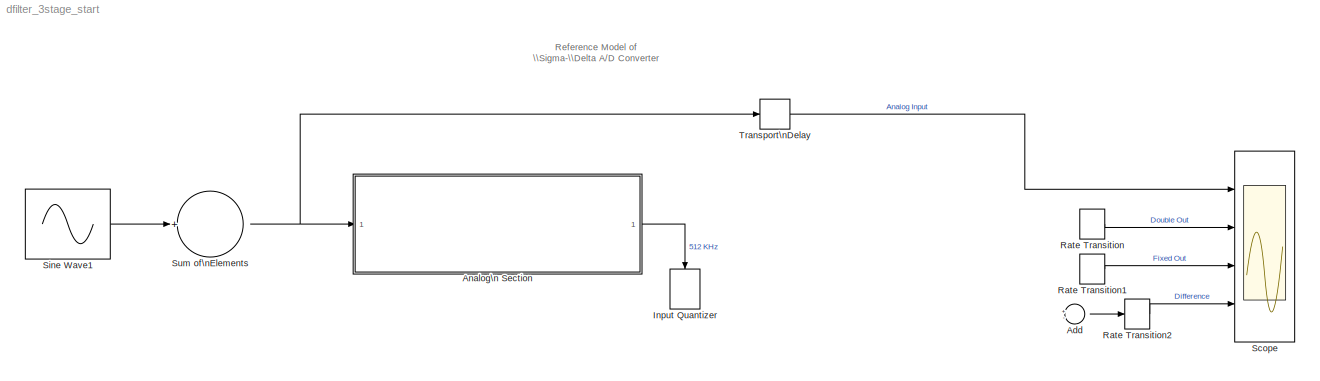
MODEL dfilter_3stage_start
KIND model
BLOCK [Sum] Add
  InputSameDT = off
  Inputs = +-
  OutDataTypeStr = Inherit: Inherit via internal rule
  Ports = [2, 1]
  SID = 28
  SaturateOnIntegerOverflow = off
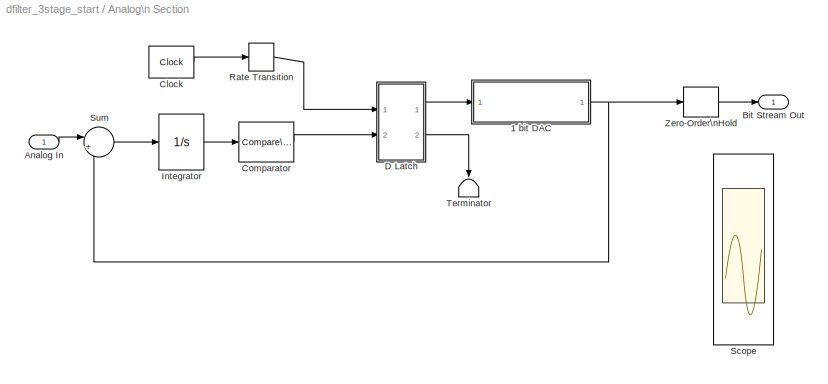
BLOCK [SubSystem] Analog\n Section
  Ports = [1, 1]
  RequestExecContextInheritance = off
  SID = 1145
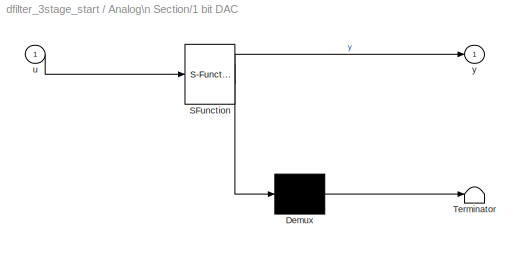
BLOCK [SubSystem] Analog\n Section/1 bit DAC
  ErrorFcn = Stateflow.Translate.translate
  PermitHierarchicalResolution = ExplicitOnly
  Ports = [1, 1]
  RequestExecContextInheritance = off
  SFBlockType = MATLAB Function
  SID = 1147
  TreatAsAtomicUnit = on
BLOCK [Demux] Analog\n Section/1 bit DAC/ Demux 
  Outputs = 1
  Ports = [1, 1]
  SID = 1147::15
BLOCK [S-Function] Analog\n Section/1 bit DAC/ SFunction 
  EnableBusSupport = on
  FunctionName = sf_sfun
  PortCounts = [1 2]
  Ports = [1, 2]
  SID = 1147::14
  Tag = Stateflow S-Function dfilter_3stage_start 1
BLOCK [Terminator] Analog\n Section/1 bit DAC/ Terminator 
  SID = 1147::16
BLOCK [Inport] Analog\n Section/1 bit DAC/u
  IconDisplay = Port number
  SID = 1147::1
BLOCK [Outport] Analog\n Section/1 bit DAC/y
  IconDisplay = Port number
  SID = 1147::5
BLOCK [Inport] Analog\n Section/Analog In
  IconDisplay = Port number
  SID = 1146
BLOCK [Outport] Analog\n Section/Bit Stream Out
  IconDisplay = Port number
  SID = 1157
BLOCK [Reference] Analog\n Section/Clock  REF=simulink_extras/Flip Flops/Clock
  Ports = [0, 1]
  SID = 1148
  SourceBlock = simulink_extras/Flip Flops/Clock
  SourceType = Digital clock
  period = 1/512000
BLOCK [Reference] Analog\n Section/Comparator  REF=simulink/Logic and Bit\nOperations/Compare\nTo Zero
  OutDataTypeStr = boolean
  Ports = [1, 1]
  SID = 1149
  SourceBlock = simulink/Logic and Bit\nOperations/Compare\nTo Zero
  SourceType = Compare To Zero
  ZeroCross = off
  relop = >=
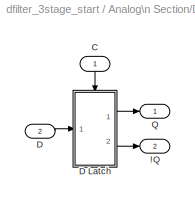
BLOCK [SubSystem] Analog\n Section/D Latch
  AncestorBlock = simulink_extras/Flip Flops/D Latch
  Ports = [2, 2]
  RequestExecContextInheritance = off
  SID = 1150
BLOCK [Outport] Analog\n Section/D Latch/!Q
  IconDisplay = Port number
  InitialOutput = 1
  Port = 2
  SID = 1150:10
BLOCK [Inport] Analog\n Section/D Latch/C
  IconDisplay = Port number
  SID = 1150:1
BLOCK [Inport] Analog\n Section/D Latch/D
  IconDisplay = Port number
  Port = 2
  SID = 1150:2
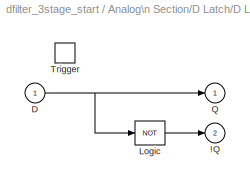
BLOCK [SubSystem] Analog\n Section/D Latch/D Latch
  Ports = [1, 2, 0, 1]
  RequestExecContextInheritance = off
  SID = 1150:3
  TreatAsAtomicUnit = on
BLOCK [Outport] Analog\n Section/D Latch/D Latch/!Q
  IconDisplay = Port number
  InitialOutput = 1
  Port = 2
  SID = 1150:8
BLOCK [Inport] Analog\n Section/D Latch/D Latch/D
  IconDisplay = Port number
  SID = 1150:4
BLOCK [Logic] Analog\n Section/D Latch/D Latch/Logic
  Inputs = 1
  Operator = NOT
  Ports = [1, 1]
  SID = 1150:6
BLOCK [Outport] Analog\n Section/D Latch/D Latch/Q
  IconDisplay = Port number
  InitialOutput = 0
  SID = 1150:7
BLOCK [TriggerPort] Analog\n Section/D Latch/D Latch/Trigger
  Ports = []
  SID = 1150:5
  StatesWhenEnabling = reset
BLOCK [Outport] Analog\n Section/D Latch/Q
  IconDisplay = Port number
  SID = 1150:9
BLOCK [Integrator] Analog\n Section/Integrator
  Ports = [1, 1]
  SID = 1151
BLOCK [RateTransition] Analog\n Section/Rate Transition
  SID = 1152
BLOCK [Scope] Analog\n Section/Scope
  DataFormat = StructureWithTime
  Floating = off
  LimitDataPoints = off
  NumInputPorts = 4
  Ports = [4]
  SID = 1153
  SampleTime = 0
  SaveName = ScopeData1
  ShowLegends = off
  TimeRange = 0.0175
  YMax = 1~1~1~0.4
  YMin = -1~-1~-0.75~-0.4
  ZoomMode = xonly
BLOCK [Sum] Analog\n Section/Sum
  IconShape = round
  InputSameDT = off
  Inputs = |+-
  OutDataTypeStr = Inherit: Inherit via internal rule
  Ports = [2, 1]
  SID = 1154
  SaturateOnIntegerOverflow = off
BLOCK [Terminator] Analog\n Section/Terminator
  SID = 1155
BLOCK [ZeroOrderHold] Analog\n Section/Zero-Order\nHold
  SID = 1156
  SampleTime = 1/512000
BLOCK [DataTypeConversion] Input Quantizer
  OutDataTypeStr = fixdt(1,2,0)
  RndMeth = Round
  SID = 881
BLOCK [RateTransition] Rate Transition
  SID = 887
BLOCK [RateTransition] Rate Transition1
  SID = 888
BLOCK [RateTransition] Rate Transition2
  SID = 889
BLOCK [Scope] Scope
  DataFormat = StructureWithTime
  Floating = off
  LimitDataPoints = off
  NumInputPorts = 4
  Ports = [4]
  SID = 44
  SampleTime = 0
  ShowLegends = off
  TimeRange = 0.0175
  YMax = 1~1~1~0.4
  YMin = -1~-1~-0.75~-0.4
  ZoomMode = xonly
BLOCK [Sin] Sine Wave1
  Amplitude = 0.5
  Frequency = 2*pi*[1500 1750]
  Ports = [0, 1]
  SID = 45
  SampleTime = 0
BLOCK [Sum] Sum of\nElements
  InputSameDT = off
  Inputs = +
  OutDataTypeStr = Inherit: Inherit via internal rule
  Ports = [1, 1]
  SID = 46
  SaturateOnIntegerOverflow = off
BLOCK [TransportDelay] Transport\nDelay
  DelayTime = (1/512e3*(31/2))+(8/512e3*(7/2))+(16/512e3*(121/2))
  Ports = [1, 1]
  SID = 47
ANNOTATION (root): Reference Model of \n\\Sigma-\\Delta A/D Converter
LINE Add:1 -> Rate Transition2:1
LINE Analog\n Section/1 bit DAC/ Demux :1 -> Analog\n Section/1 bit DAC/ Terminator :1
LINE Analog\n Section/1 bit DAC/ SFunction :1 -> Analog\n Section/1 bit DAC/ Demux :1
LINE Analog\n Section/1 bit DAC/ SFunction :2 -> Analog\n Section/1 bit DAC/y:1
LINE Analog\n Section/1 bit DAC/u:1 -> Analog\n Section/1 bit DAC/ SFunction :1
NET Analog\n Section/1 bit DAC:1 -> Analog\n Section/Sum:2, Analog\n Section/Zero-Order\nHold:1
LINE Analog\n Section/Analog In:1 -> Analog\n Section/Sum:1
LINE Analog\n Section/Clock:1 -> Analog\n Section/Rate Transition:1
LINE Analog\n Section/Comparator:1 -> Analog\n Section/D Latch:2
LINE Analog\n Section/D Latch/C:1 -> Analog\n Section/D Latch/D Latch:trigger
NET Analog\n Section/D Latch/D Latch/D:1 -> Analog\n Section/D Latch/D Latch/Logic:1, Analog\n Section/D Latch/D Latch/Q:1
LINE Analog\n Section/D Latch/D Latch/Logic:1 -> Analog\n Section/D Latch/D Latch/!Q:1
LINE Analog\n Section/D Latch/D Latch:1 -> Analog\n Section/D Latch/Q:1
LINE Analog\n Section/D Latch/D Latch:2 -> Analog\n Section/D Latch/!Q:1
LINE Analog\n Section/D Latch/D:1 -> Analog\n Section/D Latch/D Latch:1
LINE Analog\n Section/D Latch:1 -> Analog\n Section/1 bit DAC:1
LINE Analog\n Section/D Latch:2 -> Analog\n Section/Terminator:1
LINE Analog\n Section/Integrator:1 -> Analog\n Section/Comparator:1
LINE Analog\n Section/Rate Transition:1 -> Analog\n Section/D Latch:1
LINE Analog\n Section/Sum:1 -> Analog\n Section/Integrator:1
LINE Analog\n Section/Zero-Order\nHold:1 -> Analog\n Section/Bit Stream Out:1
LINE Analog\n Section:1 -> Input Quantizer:1
LINE Rate Transition1:1 -> Scope:3
LINE Rate Transition2:1 -> Scope:4
LINE Rate Transition:1 -> Scope:2
LINE Sine Wave1:1 -> Sum of\nElements:1
NET Sum of\nElements:1 -> Analog\n Section:1, Transport\nDelay:1
LINE Transport\nDelay:1 -> Scope:1
note: NET lines group one-source signal fan-out (src -> all destinations, sorted); 1:1 wires keep LINE
CHART Analog\n Section/1 bit DAC states=1 transitions=1
  STATE_LABEL 'eML_blk_kernel()'
